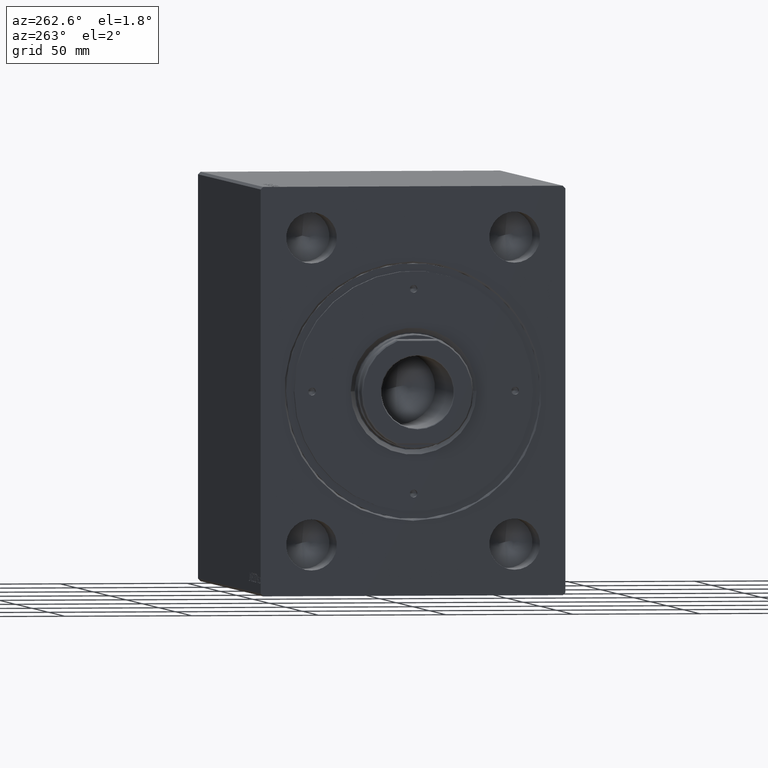
[diagram: clean part render]
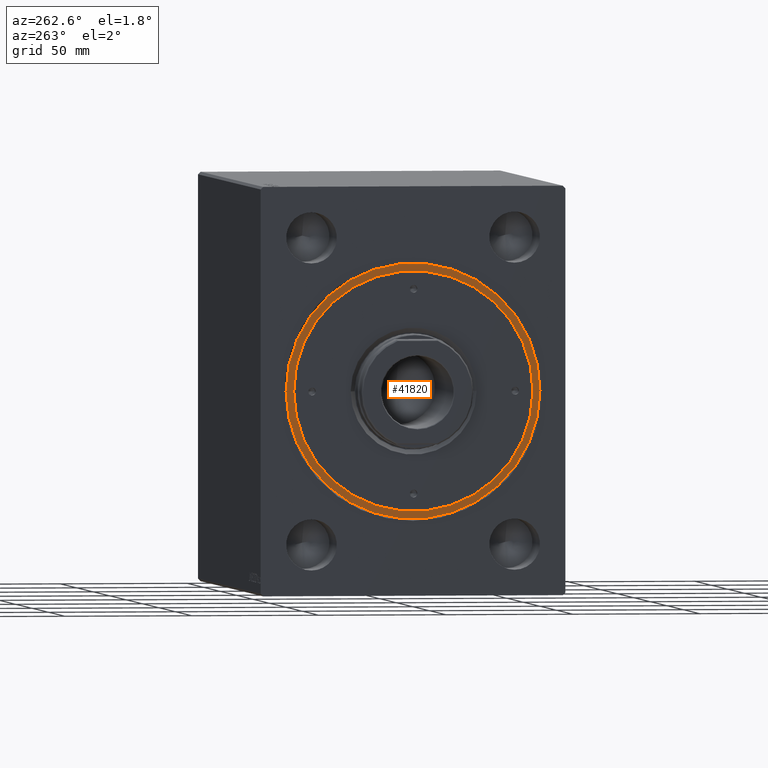
[diagram: same view with one face highlighted and labeled with its STEP entity id]
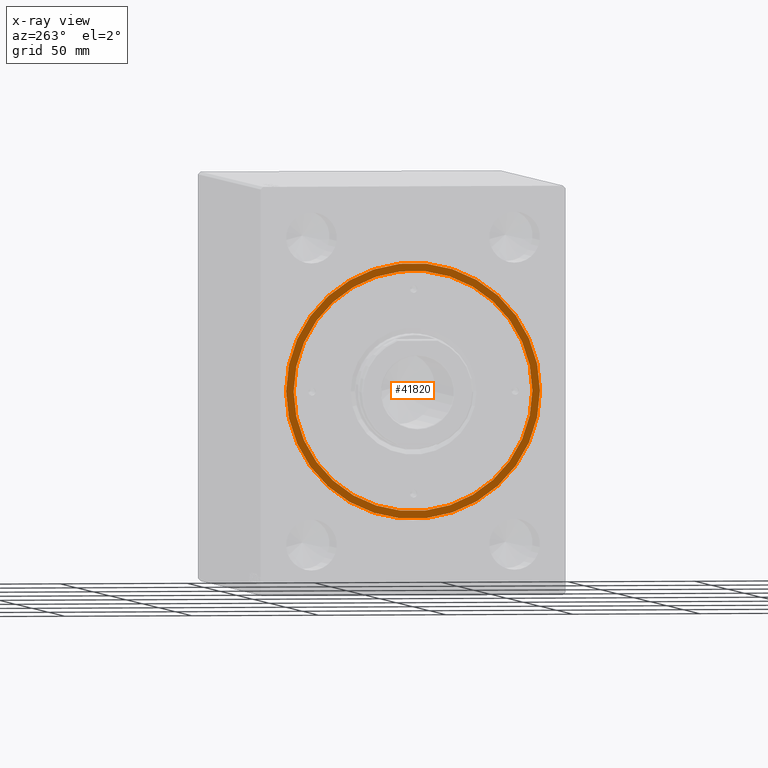
[diagram: x-ray of the same camera — body ghosted, the highlighted face saturated]
A machine part, auxiliary view. The second image highlights one B-rep face of the part: STEP entity #41820.
The next image is the same camera in x-ray: the body ghosted, the highlighted face saturated — about 0% of this face is hidden behind the body in this view.
In plain terms, the highlighted planar face has unit normal (-1, 0, 0).
Its self-contained STEP definition (entity closure, byte-faithful):
#948 = DIRECTION ( 'NONE',  ( 0.000000000000000000, 0.000000000000000000, 1.000000000000000000 ) ) ;
#1434 = AXIS2_PLACEMENT_3D ( 'NONE', #30447, #10666, #17763 ) ;
#1681 = CARTESIAN_POINT ( 'NONE',  ( 47.00000000000000711, 5.755839955992561430E-15, 12.19999999999999929 ) ) ;
#2798 = EDGE_LOOP ( 'NONE', ( #23321, #13365 ) ) ;
#4785 = CARTESIAN_POINT ( 'NONE',  ( 0.000000000000000000, 0.000000000000000000, 12.19999999999999929 ) ) ;
#5112 = EDGE_CURVE ( 'NONE', #24213, #28365, #41068, .T. ) ;
#7992 = EDGE_LOOP ( 'NONE', ( #37343, #16313 ) ) ;
#9017 = FACE_BOUND ( 'NONE', #7992, .T. ) ;
#10191 = AXIS2_PLACEMENT_3D ( 'NONE', #29889, #35691, #29028 ) ;
#10666 = DIRECTION ( 'NONE',  ( 0.000000000000000000, 0.000000000000000000, 1.000000000000000000 ) ) ;
#13365 = ORIENTED_EDGE ( 'NONE', *, *, #5112, .T. ) ;
#15042 = CARTESIAN_POINT ( 'NONE',  ( -47.00000000000000711, 0.000000000000000000, 12.19999999999999929 ) ) ;
#15562 = EDGE_CURVE ( 'NONE', #28365, #24213, #41200, .T. ) ;
#16313 = ORIENTED_EDGE ( 'NONE', *, *, #29460, .F. ) ;
#17763 = DIRECTION ( 'NONE',  ( 1.000000000000000000, 0.000000000000000000, 0.000000000000000000 ) ) ;
#18099 = DIRECTION ( 'NONE',  ( 1.000000000000000000, 0.000000000000000000, 0.000000000000000000 ) ) ;
#18327 = CARTESIAN_POINT ( 'NONE',  ( 0.000000000000000000, 0.000000000000000000, 12.19999999999999929 ) ) ;
#18484 = AXIS2_PLACEMENT_3D ( 'NONE', #23377, #23817, #27145 ) ;
#18534 = CARTESIAN_POINT ( 'NONE',  ( -50.00000000000000000, 0.000000000000000000, 12.19999999999999929 ) ) ;
#19248 = DIRECTION ( 'NONE',  ( 0.000000000000000000, 0.000000000000000000, 1.000000000000000000 ) ) ;
#19429 = CIRCLE ( 'NONE', #10191, 47.00000000000000711 ) ;
#20436 = EDGE_CURVE ( 'NONE', #25505, #25516, #22765, .T. ) ;
#20843 = AXIS2_PLACEMENT_3D ( 'NONE', #4785, #19248, #25257 ) ;
#22765 = CIRCLE ( 'NONE', #1434, 47.00000000000000711 ) ;
#23321 = ORIENTED_EDGE ( 'NONE', *, *, #15562, .T. ) ;
#23377 = CARTESIAN_POINT ( 'NONE',  ( 0.000000000000000000, 0.000000000000000000, 12.19999999999999929 ) ) ;
#23817 = DIRECTION ( 'NONE',  ( 0.000000000000000000, 0.000000000000000000, 1.000000000000000000 ) ) ;
#24213 = VERTEX_POINT ( 'NONE', #27766 ) ;
#25257 = DIRECTION ( 'NONE',  ( 1.000000000000000000, 0.000000000000000000, -0.000000000000000000 ) ) ;
#25505 = VERTEX_POINT ( 'NONE', #15042 ) ;
#25516 = VERTEX_POINT ( 'NONE', #1681 ) ;
#27145 = DIRECTION ( 'NONE',  ( 1.000000000000000000, 0.000000000000000000, 0.000000000000000000 ) ) ;
#27766 = CARTESIAN_POINT ( 'NONE',  ( 50.00000000000000000, 6.123233995736766085E-15, 12.19999999999999929 ) ) ;
#28365 = VERTEX_POINT ( 'NONE', #18534 ) ;
#29028 = DIRECTION ( 'NONE',  ( 1.000000000000000000, 0.000000000000000000, 0.000000000000000000 ) ) ;
#29460 = EDGE_CURVE ( 'NONE', #25516, #25505, #19429, .T. ) ;
#29889 = CARTESIAN_POINT ( 'NONE',  ( 0.000000000000000000, 0.000000000000000000, 12.19999999999999929 ) ) ;
#30447 = CARTESIAN_POINT ( 'NONE',  ( 0.000000000000000000, 0.000000000000000000, 12.19999999999999929 ) ) ;
#35691 = DIRECTION ( 'NONE',  ( 0.000000000000000000, 0.000000000000000000, 1.000000000000000000 ) ) ;
#36124 = FACE_OUTER_BOUND ( 'NONE', #2798, .T. ) ;
#37343 = ORIENTED_EDGE ( 'NONE', *, *, #20436, .F. ) ;
#41068 = CIRCLE ( 'NONE', #41791, 50.00000000000000000 ) ;
#41200 = CIRCLE ( 'NONE', #18484, 50.00000000000000000 ) ;
#41791 = AXIS2_PLACEMENT_3D ( 'NONE', #18327, #948, #18099 ) ;
#41820 = ADVANCED_FACE ( 'NONE', ( #9017, #36124 ), #42147, .T. ) ;
#42147 = PLANE ( 'NONE',  #20843 ) ;